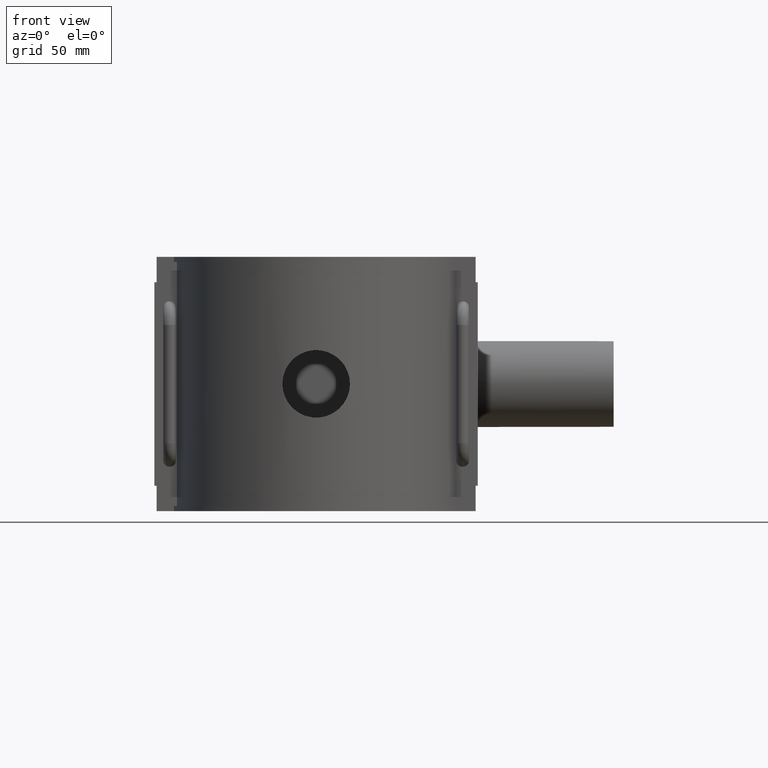
[diagram: clean part render]
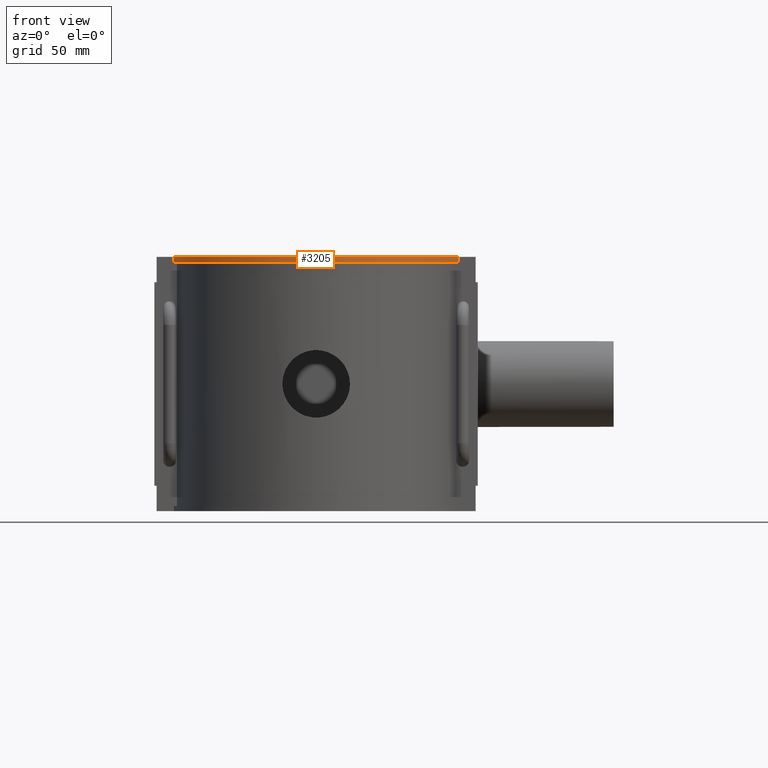
[diagram: same view with one face highlighted and labeled with its STEP entity id]
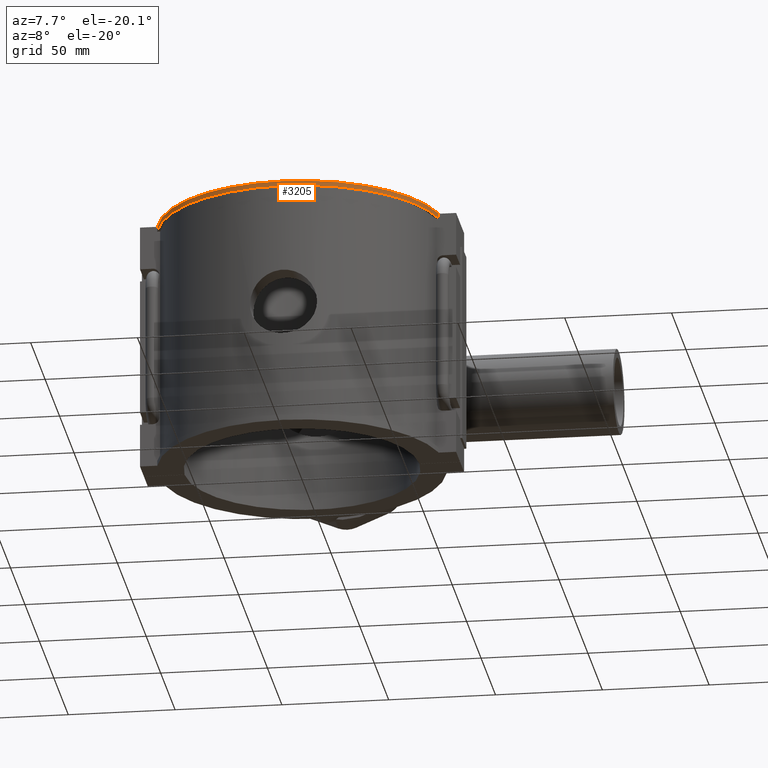
[diagram: same view with one face highlighted and labeled with its STEP entity id]
A machine part, front view. The second image highlights one B-rep face of the part: STEP entity #3205.
A second angle (auxiliary view) of the same face is appended — the face is thin or edge-on in the first view.
In plain terms, the highlighted cylindrical surface (partial cylindrical patch) has radius 67.32 mm, axis along (0, 0, -1).
Its self-contained STEP definition (entity closure, byte-faithful):
#117=LINE('',#5484,#404);
#129=LINE('',#5548,#416);
#404=VECTOR('',#3916,2.36);
#416=VECTOR('',#3948,2.36);
#780=CIRCLE('',#3445,67.32);
#781=CIRCLE('',#3446,67.32);
#955=FACE_OUTER_BOUND('',#1154,.T.);
#1154=EDGE_LOOP('',(#2450,#2451,#2452,#2453));
#1482=VERTEX_POINT('',#5481);
#1483=VERTEX_POINT('',#5483);
#1500=VERTEX_POINT('',#5544);
#1501=VERTEX_POINT('',#5546);
#1840=EDGE_CURVE('',#1482,#1483,#117,.T.);
#1859=EDGE_CURVE('',#1483,#1500,#780,.T.);
#1860=EDGE_CURVE('',#1501,#1482,#781,.T.);
#1861=EDGE_CURVE('',#1500,#1501,#129,.T.);
#2450=ORIENTED_EDGE('',*,*,#1859,.F.);
#2451=ORIENTED_EDGE('',*,*,#1840,.F.);
#2452=ORIENTED_EDGE('',*,*,#1860,.F.);
#2453=ORIENTED_EDGE('',*,*,#1861,.F.);
#3114=CYLINDRICAL_SURFACE('',#3444,67.32);
#3205=ADVANCED_FACE('',(#955),#3114,.T.);
#3444=AXIS2_PLACEMENT_3D('',#5543,#3942,#3943);
#3445=AXIS2_PLACEMENT_3D('',#5545,#3944,#3945);
#3446=AXIS2_PLACEMENT_3D('',#5547,#3946,#3947);
#3916=DIRECTION('',(0.,0.,1.));
#3942=DIRECTION('center_axis',(0.,0.,-1.));
#3943=DIRECTION('ref_axis',(-0.97891910032494,-0.204248366013072,0.));
#3944=DIRECTION('center_axis',(0.,0.,1.));
#3945=DIRECTION('ref_axis',(-0.97891910032494,-0.204248366013072,0.));
#3946=DIRECTION('center_axis',(0.,0.,-1.));
#3947=DIRECTION('ref_axis',(-0.97891910032494,-0.204248366013072,0.));
#3948=DIRECTION('',(0.,0.,-1.));
#5481=CARTESIAN_POINT('',(-65.900833833875,-13.75,56.64));
#5483=CARTESIAN_POINT('',(-65.900833833875,-13.75,59.));
#5484=CARTESIAN_POINT('',(-65.900833833875,-13.75,59.));
#5543=CARTESIAN_POINT('Origin',(0.,0.,59.));
#5544=CARTESIAN_POINT('',(65.900833833875,-13.75,59.));
#5545=CARTESIAN_POINT('Origin',(0.,0.,59.));
#5546=CARTESIAN_POINT('',(65.900833833875,-13.75,56.64));
#5547=CARTESIAN_POINT('Origin',(0.,0.,56.64));
#5548=CARTESIAN_POINT('',(65.900833833875,-13.75,59.));